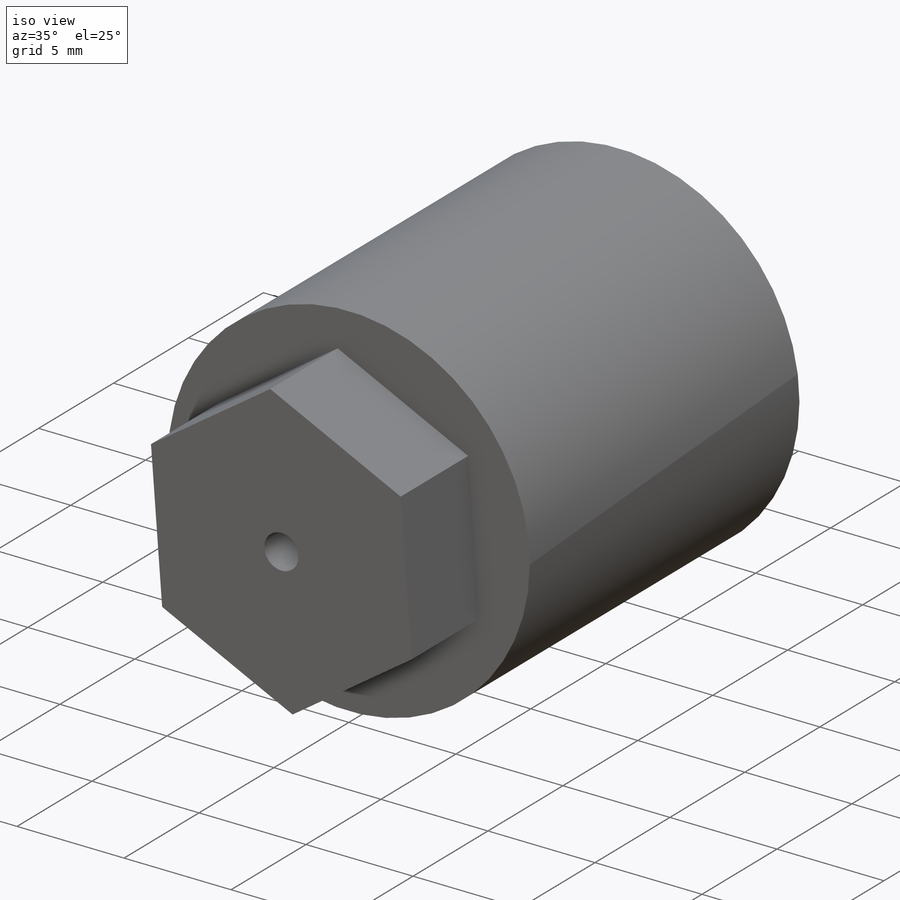
[diagram: iso view]
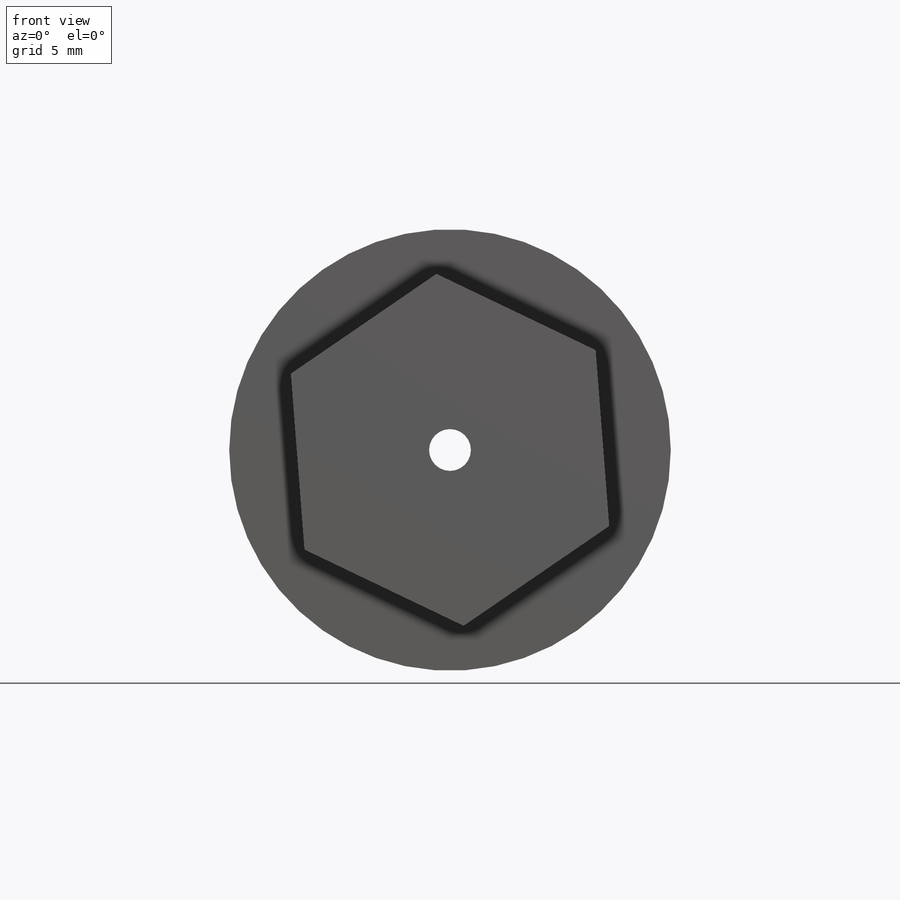
[diagram: front view]
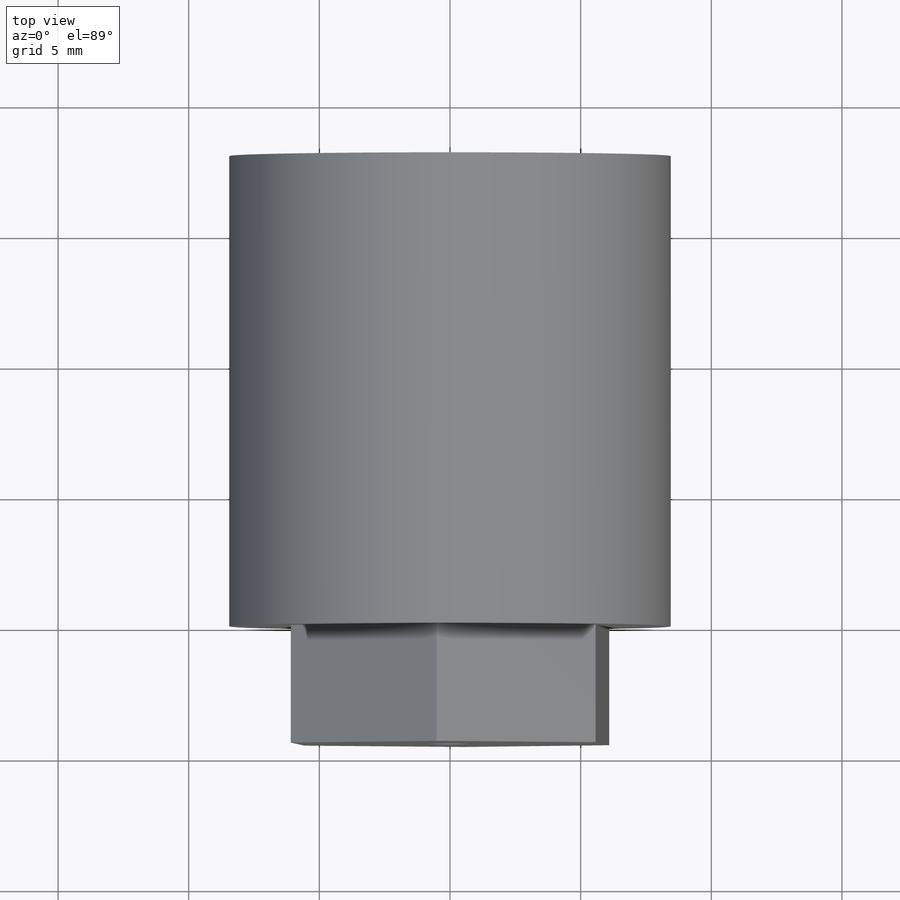
[diagram: top view]
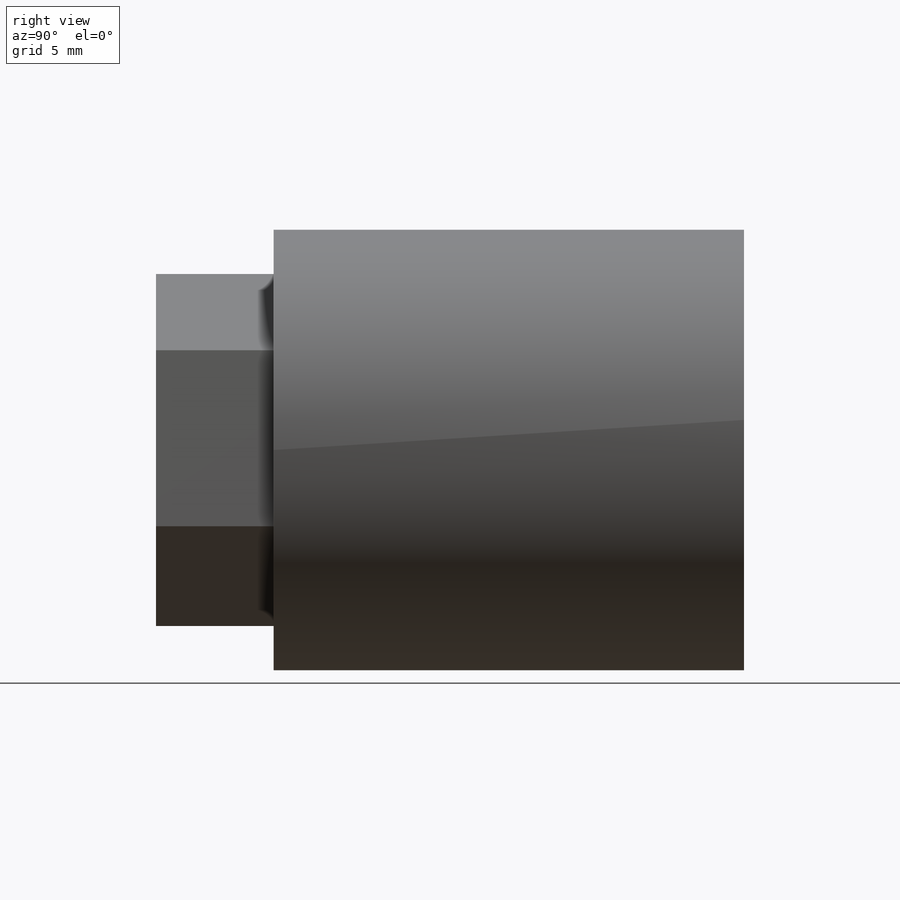
[diagram: right view]
SOLIDWORKS PART (.sldprt)
format: sldprt  version: not decoded by parser v0  size: 179,200 bytes
history: native  units: mm
features: sketch x7, extrude x4, cut_extrude x3, material x1 (+13 scaffold rows collapsed)
feature tree (28):
  scaffold x13  (default folders/planes/origin — collapsed)
  material  "Material <not specified>"
  sketch  "Sketch1"  dims[D1=6.0mm]
  extrude  "Boss-Extrude1"  Depth=4.5mm
  sketch  "Sketch2"  dims[D1=~0.216621mm]
  sketch  "Sketch4"  dims[D1=~4.573713mm]
  extrude  "Boss-Extrude2"  Depth=18mm
  extrude  "Boss-Extrude3"  [1 undecoded]
  sketch  "Sketch1<2>"  dims[D1=4.5mm]
  cut_extrude  "Cut-Extrude2"  Depth=6.5mm
  extrude  "Boss-Extrude4"  [1 undecoded]
  sketch  "Sketch1<3>"  dims[D1=4.5mm]
  cut_extrude  "Cut-Extrude4"  [1 undecoded]
  sketch  "Sketch2<2>"  dims[D1=6.0mm]
  sketch  "Sketch5"  dims[D1=~3.303044mm]
  cut_extrude  "Cut-Extrude5"  Depth=16mm
decode coverage: 11 of 14 modeling features carry decoded parameters
note: ~ marks probable driven/reference dimensions
note: 3 parameter values undecoded
summary: no parameter record found for 3 features
note: suppression state not decoded; provenance and decode notes live in map.json
